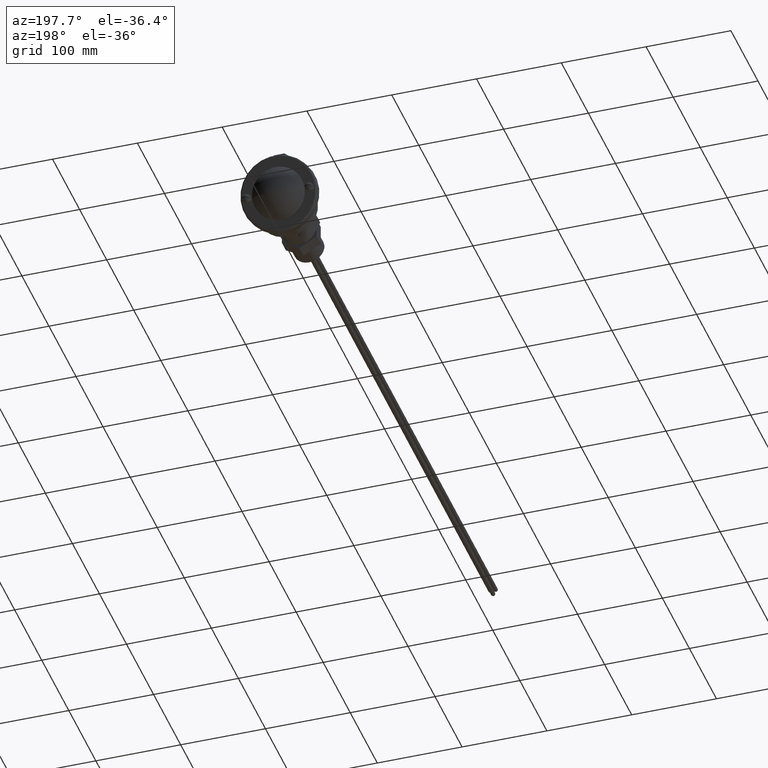
[diagram: clean part render]
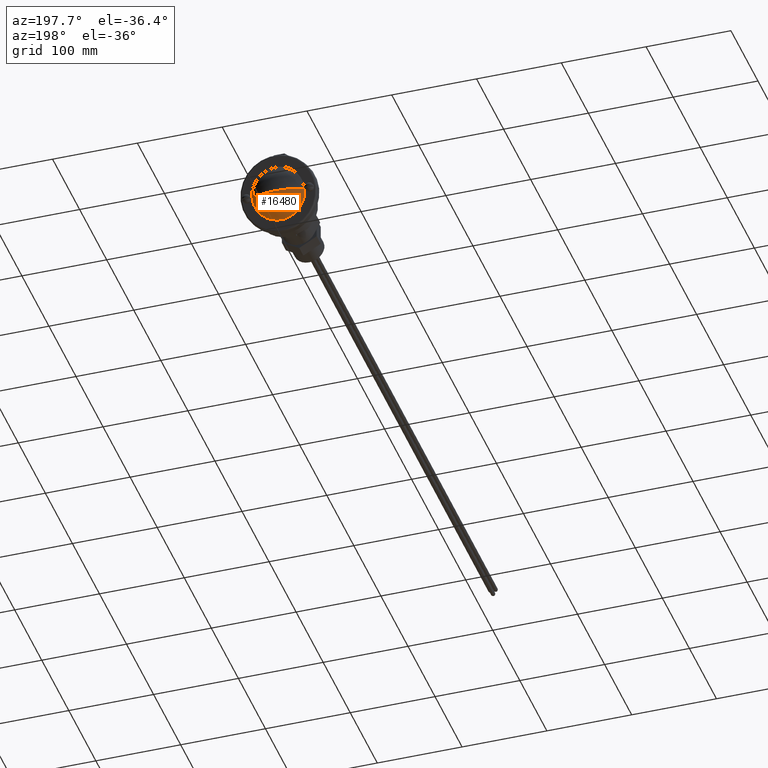
[diagram: same view with one face highlighted and labeled with its STEP entity id]
A machine part, auxiliary view. The second image highlights one B-rep face of the part: STEP entity #16480.
In plain terms, the highlighted spherical surface has radius 45 mm.
Its self-contained STEP definition (entity closure, byte-faithful):
#9 = ORIENTED_EDGE ( 'NONE', *, *, #10760, .F. ) ;
#292 = DIRECTION ( 'NONE',  ( 1.000000000000000000, 0.000000000000000000, 0.000000000000000000 ) ) ;
#574 = SPHERICAL_SURFACE ( 'NONE', #12865, 45.00000000000014921 ) ;
#1874 = DIRECTION ( 'NONE',  ( 0.000000000000000000, 1.000000000000000000, 0.000000000000000000 ) ) ;
#2669 = ORIENTED_EDGE ( 'NONE', *, *, #12734, .T. ) ;
#3136 = CARTESIAN_POINT ( 'NONE',  ( -109.2386333165350010, 0.000000000000000000, -22.38098713939954720 ) ) ;
#3260 = CARTESIAN_POINT ( 'NONE',  ( -109.2386333165350010, 0.000000000000000000, -10.00000000000000000 ) ) ;
#3357 = CARTESIAN_POINT ( 'NONE',  ( -109.2386333165350010, 0.000000000000000000, 22.61901286060060201 ) ) ;
#4145 = CIRCLE ( 'NONE', #7262, 31.00000000000000000 ) ;
#4303 = VERTEX_POINT ( 'NONE', #5409 ) ;
#4341 = CIRCLE ( 'NONE', #18417, 45.00000000000014921 ) ;
#5409 = CARTESIAN_POINT ( 'NONE',  ( -140.2386333165348731, 3.796405077356781704E-15, -9.999999999999998224 ) ) ;
#6498 = ORIENTED_EDGE ( 'NONE', *, *, #6684, .F. ) ;
#6517 = VERTEX_POINT ( 'NONE', #12753 ) ;
#6684 = EDGE_CURVE ( 'NONE', #4303, #6517, #4145, .T. ) ;
#7262 = AXIS2_PLACEMENT_3D ( 'NONE', #3260, #9038, #15019 ) ;
#8005 = DIRECTION ( 'NONE',  ( 0.000000000000000000, 0.000000000000000000, -1.000000000000000000 ) ) ;
#9038 = DIRECTION ( 'NONE',  ( 0.000000000000000000, 0.000000000000000000, 1.000000000000000000 ) ) ;
#9181 = DIRECTION ( 'NONE',  ( 0.000000000000000000, -1.000000000000000000, 0.000000000000000000 ) ) ;
#9280 = EDGE_LOOP ( 'NONE', ( #9, #2669, #6498 ) ) ;
#10654 = CARTESIAN_POINT ( 'NONE',  ( -109.2386333165350010, 0.000000000000000000, 22.61901286060060201 ) ) ;
#10760 = EDGE_CURVE ( 'NONE', #15067, #4303, #4341, .T. ) ;
#12734 = EDGE_CURVE ( 'NONE', #15067, #6517, #16714, .T. ) ;
#12753 = CARTESIAN_POINT ( 'NONE',  ( -78.23863331653510045, 0.000000000000000000, -9.999999999999998224 ) ) ;
#12865 = AXIS2_PLACEMENT_3D ( 'NONE', #3357, #1874, #292 ) ;
#13268 = AXIS2_PLACEMENT_3D ( 'NONE', #10654, #9181, #8005 ) ;
#14705 = CARTESIAN_POINT ( 'NONE',  ( -109.2386333165350010, 0.000000000000000000, 22.61901286060060201 ) ) ;
#15019 = DIRECTION ( 'NONE',  ( 1.000000000000000000, 0.000000000000000000, 0.000000000000000000 ) ) ;
#15067 = VERTEX_POINT ( 'NONE', #3136 ) ;
#15410 = FACE_OUTER_BOUND ( 'NONE', #9280, .T. ) ;
#16480 = ADVANCED_FACE ( 'NONE', ( #15410 ), #574, .T. ) ;
#16571 = DIRECTION ( 'NONE',  ( 1.224646799147353207E-16, 1.000000000000000000, -0.000000000000000000 ) ) ;
#16714 = CIRCLE ( 'NONE', #13268, 45.00000000000014921 ) ;
#18145 = DIRECTION ( 'NONE',  ( -1.000000000000000000, 1.224646799147353207E-16, 0.000000000000000000 ) ) ;
#18417 = AXIS2_PLACEMENT_3D ( 'NONE', #14705, #16571, #18145 ) ;